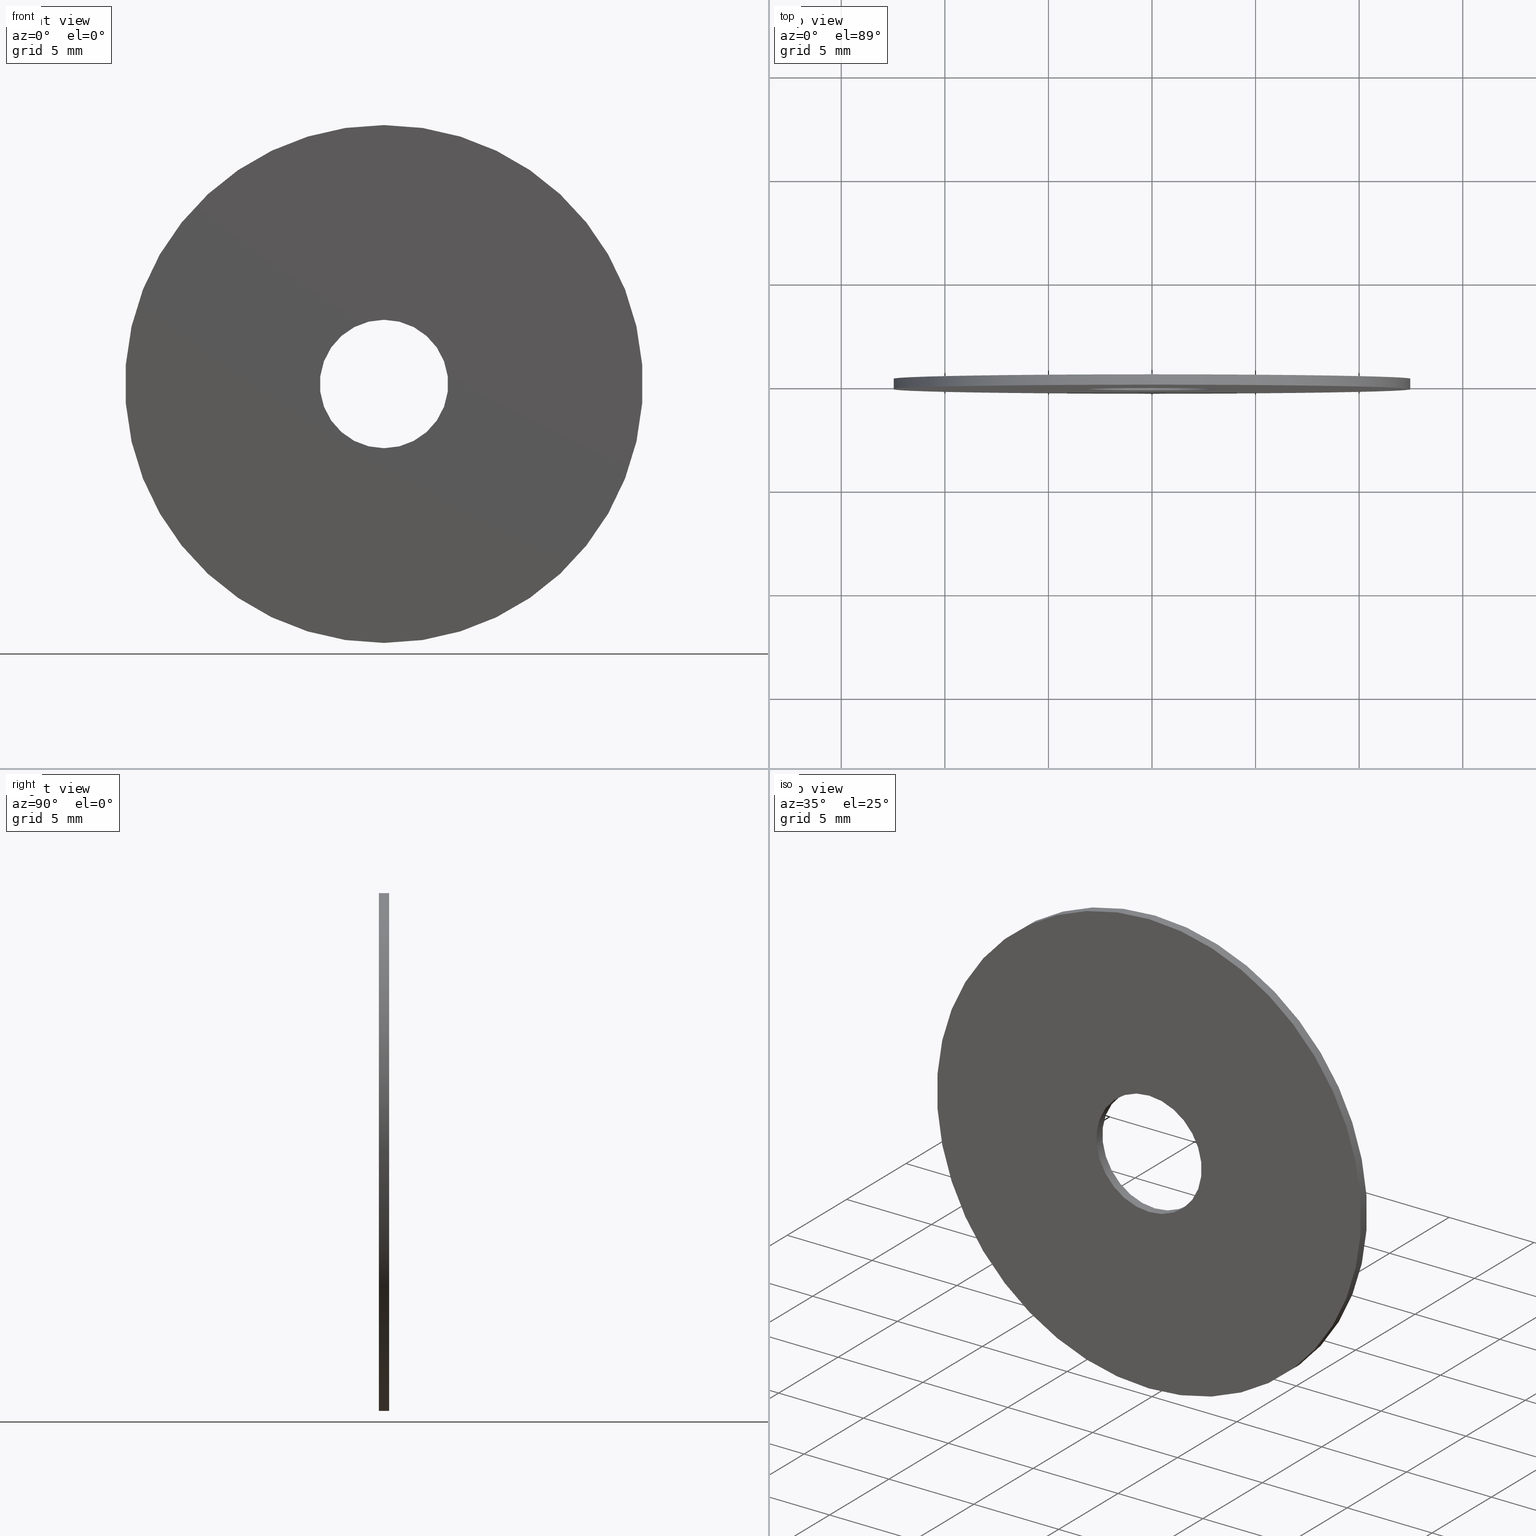
[diagram: canonical four-view strip — front | top / right | iso, engineering-drawing reading convention]
A machine part, canonical four-view strip (front | top / right | iso — engineering-drawing reading convention). The complete STEP part file that produces these views, byte-faithful:
ISO-10303-21;
HEADER;
FILE_DESCRIPTION (( 'STEP AP203' ),
    '1' );
FILE_NAME ('1.4.2.132-ZGH-25-DK0.5.STEP',
    '2024-04-06T05:15:09',
    ( '' ),
    ( '' ),
    'SwSTEP 2.0',
    'SolidWorks 2021',
    '' );
FILE_SCHEMA (( 'CONFIG_CONTROL_DESIGN' ));
ENDSEC;

DATA;
#1 = DIRECTION ( 'NONE',  ( 0.000000000000000000, 0.000000000000000000, 1.000000000000000000 ) ) ;
#2 = PRODUCT_DEFINITION_FORMATION_WITH_SPECIFIED_SOURCE ( '�κ�', '', #143, .NOT_KNOWN. ) ;
#3 = DIRECTION ( 'NONE',  ( 1.000000000000000000, 0.000000000000000000, 0.000000000000000000 ) ) ;
#4 = CARTESIAN_POINT ( 'NONE',  ( 0.000000000000000000, -0.2500000000000000000, 3.100000000000000089 ) ) ;
#5 = PERSON_AND_ORGANIZATION ( #83, #62 ) ;
#6 = CC_DESIGN_PERSON_AND_ORGANIZATION_ASSIGNMENT ( #5, #41, ( #2 ) ) ;
#7 = DATE_AND_TIME ( #183, #112 ) ;
#8 = PERSON_AND_ORGANIZATION_ROLE ( 'classification_officer' ) ;
#9 = CIRCLE ( 'NONE', #131, 3.100000000000000089 ) ;
#10 = AXIS2_PLACEMENT_3D ( 'NONE', #69, #51, #187 ) ;
#11 = ORIENTED_EDGE ( 'NONE', *, *, #13, .T. ) ;
#12 = CYLINDRICAL_SURFACE ( 'NONE', #205, 3.100000000000000089 ) ;
#13 = EDGE_CURVE ( 'NONE', #29, #85, #145, .T. ) ;
#14 = CARTESIAN_POINT ( 'NONE',  ( 1.530808498934191521E-15, 0.2500000000000000000, 12.50000000000000000 ) ) ;
#15 = ORIENTED_EDGE ( 'NONE', *, *, #180, .F. ) ;
#16 = ADVANCED_FACE ( 'NONE', ( #95 ), #47, .T. ) ;
#17 = EDGE_LOOP ( 'NONE', ( #11, #72 ) ) ;
#18 = ORIENTED_EDGE ( 'NONE', *, *, #158, .F. ) ;
#19 = MECHANICAL_CONTEXT ( 'NONE', #124, 'mechanical' ) ;
#20 = PRODUCT_DEFINITION ( 'δ֪', '', #2, #86 ) ;
#21 = AXIS2_PLACEMENT_3D ( 'NONE', #32, #105, #71 ) ;
#22 = LINE ( 'NONE', #178, #119 ) ;
#23 = EDGE_CURVE ( 'NONE', #211, #212, #34, .T. ) ;
#24 = AXIS2_PLACEMENT_3D ( 'NONE', #116, #133, #232 ) ;
#25 = PERSON_AND_ORGANIZATION ( #83, #62 ) ;
#26 = PERSON_AND_ORGANIZATION ( #83, #62 ) ;
#27 = ORIENTED_EDGE ( 'NONE', *, *, #110, .F. ) ;
#28 = EDGE_CURVE ( 'NONE', #212, #211, #150, .T. ) ;
#29 = VERTEX_POINT ( 'NONE', #171 ) ;
#30 = DIRECTION ( 'NONE',  ( 0.000000000000000000, 1.000000000000000000, 0.000000000000000000 ) ) ;
#31 = EDGE_LOOP ( 'NONE', ( #241, #225 ) ) ;
#32 = CARTESIAN_POINT ( 'NONE',  ( 0.000000000000000000, -0.2500000000000000000, 0.000000000000000000 ) ) ;
#33 = CARTESIAN_POINT ( 'NONE',  ( 0.000000000000000000, -0.2500000000000000000, 0.000000000000000000 ) ) ;
#34 = CIRCLE ( 'NONE', #157, 12.50000000000000000 ) ;
#35 = CARTESIAN_POINT ( 'NONE',  ( 0.000000000000000000, -0.2500000000000000000, 0.000000000000000000 ) ) ;
#36 = CYLINDRICAL_SURFACE ( 'NONE', #67, 3.100000000000000089 ) ;
#37 =( NAMED_UNIT ( * ) SI_UNIT ( $, .STERADIAN. ) SOLID_ANGLE_UNIT ( ) );
#38 = CIRCLE ( 'NONE', #92, 3.100000000000000089 ) ;
#39 = CARTESIAN_POINT ( 'NONE',  ( 0.000000000000000000, 0.2500000000000000000, 0.000000000000000000 ) ) ;
#40 = LINE ( 'NONE', #4, #235 ) ;
#41 = PERSON_AND_ORGANIZATION_ROLE ( 'creator' ) ;
#42 = COORDINATED_UNIVERSAL_TIME_OFFSET ( 8, 0, .AHEAD. ) ;
#43 = PERSON_AND_ORGANIZATION_ROLE ( 'creator' ) ;
#44 = AXIS2_PLACEMENT_3D ( 'NONE', #159, #54, #3 ) ;
#45 = ORIENTED_EDGE ( 'NONE', *, *, #186, .F. ) ;
#46 = CC_DESIGN_PERSON_AND_ORGANIZATION_ASSIGNMENT ( #60, #185, ( #2 ) ) ;
#47 = CYLINDRICAL_SURFACE ( 'NONE', #58, 12.50000000000000000 ) ;
#48 = DIRECTION ( 'NONE',  ( -0.000000000000000000, -1.000000000000000000, -0.000000000000000000 ) ) ;
#49 = DIRECTION ( 'NONE',  ( -0.000000000000000000, -1.000000000000000000, -0.000000000000000000 ) ) ;
#50 = ORIENTED_EDGE ( 'NONE', *, *, #57, .T. ) ;
#51 = DIRECTION ( 'NONE',  ( 0.000000000000000000, 1.000000000000000000, 0.000000000000000000 ) ) ;
#52 = AXIS2_PLACEMENT_3D ( 'NONE', #39, #132, #1 ) ;
#53 = CC_DESIGN_PERSON_AND_ORGANIZATION_ASSIGNMENT ( #120, #8, ( #229 ) ) ;
#54 = DIRECTION ( 'NONE',  ( 0.000000000000000000, 0.000000000000000000, 1.000000000000000000 ) ) ;
#55 = CARTESIAN_POINT ( 'NONE',  ( 0.000000000000000000, 0.2500000000000000000, 0.000000000000000000 ) ) ;
#56 = DIRECTION ( 'NONE',  ( 0.000000000000000000, 0.000000000000000000, -1.000000000000000000 ) ) ;
#57 = EDGE_CURVE ( 'NONE', #123, #165, #125, .T. ) ;
#58 = AXIS2_PLACEMENT_3D ( 'NONE', #109, #190, #129 ) ;
#59 = APPROVAL_ROLE ( '' ) ;
#60 = PERSON_AND_ORGANIZATION ( #83, #62 ) ;
#61 = ORIENTED_EDGE ( 'NONE', *, *, #147, .F. ) ;
#62 = ORGANIZATION ( 'δָ��', 'δָ��', '' ) ;
#63 = APPROVAL ( #81, 'δָ��' ) ;
#64 = ADVANCED_BREP_SHAPE_REPRESENTATION ( '1.4.2.132-ZGH-25-DK0.5', ( #117, #44 ), #122 ) ;
#65 = DATE_TIME_ROLE ( 'creation_date' ) ;
#66 = APPLICATION_CONTEXT ( 'configuration controlled 3d designs of mechanical parts and assemblies' ) ;
#67 = AXIS2_PLACEMENT_3D ( 'NONE', #35, #73, #77 ) ;
#68 = VERTEX_POINT ( 'NONE', #155 ) ;
#69 = CARTESIAN_POINT ( 'NONE',  ( 0.000000000000000000, 0.2500000000000000000, 0.000000000000000000 ) ) ;
#70 = CARTESIAN_POINT ( 'NONE',  ( 0.000000000000000000, 0.2500000000000000000, 0.000000000000000000 ) ) ;
#71 = DIRECTION ( 'NONE',  ( 0.000000000000000000, 0.000000000000000000, 1.000000000000000000 ) ) ;
#72 = ORIENTED_EDGE ( 'NONE', *, *, #126, .T. ) ;
#73 = DIRECTION ( 'NONE',  ( -0.000000000000000000, 1.000000000000000000, -0.000000000000000000 ) ) ;
#74 =( LENGTH_UNIT ( ) NAMED_UNIT ( * ) SI_UNIT ( .MILLI., .METRE. ) );
#75 = APPLICATION_PROTOCOL_DEFINITION ( 'international standard', 'config_control_design', 1994, #124 ) ;
#76 = PERSON_AND_ORGANIZATION_ROLE ( 'design_owner' ) ;
#77 = DIRECTION ( 'NONE',  ( 0.000000000000000000, 0.000000000000000000, 1.000000000000000000 ) ) ;
#78 = APPROVAL_PERSON_ORGANIZATION ( #219, #238, #182 ) ;
#79 = CALENDAR_DATE ( 2024, 6, 4 ) ;
#80 = APPROVAL_DATE_TIME ( #7, #63 ) ;
#81 = APPROVAL_STATUS ( 'not_yet_approved' ) ;
#82 = ORIENTED_EDGE ( 'NONE', *, *, #110, .T. ) ;
#83 = PERSON ( 'δָ��', 'δָ��', 'δָ��', ('δָ��'), ('δָ��'), ('δָ��') ) ;
#84 = ADVANCED_FACE ( 'NONE', ( #213 ), #12, .F. ) ;
#85 = VERTEX_POINT ( 'NONE', #14 ) ;
#86 = DESIGN_CONTEXT ( 'detailed design', #66, 'design' ) ;
#87 = ORIENTED_EDGE ( 'NONE', *, *, #126, .F. ) ;
#88 = VECTOR ( 'NONE', #48, 1000.000000000000000 ) ;
#89 = DIRECTION ( 'NONE',  ( 0.000000000000000000, 1.000000000000000000, 0.000000000000000000 ) ) ;
#90 = FACE_OUTER_BOUND ( 'NONE', #108, .T. ) ;
#91 = VERTEX_POINT ( 'NONE', #111 ) ;
#92 = AXIS2_PLACEMENT_3D ( 'NONE', #55, #181, #156 ) ;
#93 = DIRECTION ( 'NONE',  ( -0.000000000000000000, 1.000000000000000000, -0.000000000000000000 ) ) ;
#94 = ADVANCED_FACE ( 'NONE', ( #226, #173 ), #249, .F. ) ;
#95 = FACE_OUTER_BOUND ( 'NONE', #149, .T. ) ;
#96 = DIRECTION ( 'NONE',  ( -0.000000000000000000, 1.000000000000000000, -0.000000000000000000 ) ) ;
#97 = LOCAL_TIME ( 13, 15, 9.000000000000000000, #144 ) ;
#98 = CARTESIAN_POINT ( 'NONE',  ( 3.796405077356794918E-16, 0.2500000000000000000, -3.100000000000000089 ) ) ;
#99 = APPROVAL_STATUS ( 'not_yet_approved' ) ;
#100 = APPROVAL_DATE_TIME ( #161, #202 ) ;
#101 = AXIS2_PLACEMENT_3D ( 'NONE', #246, #89, #231 ) ;
#102 = DATE_AND_TIME ( #79, #106 ) ;
#103 = COORDINATED_UNIVERSAL_TIME_OFFSET ( 8, 0, .AHEAD. ) ;
#104 = SHAPE_DEFINITION_REPRESENTATION ( #176, #64 ) ;
#105 = DIRECTION ( 'NONE',  ( 0.000000000000000000, 1.000000000000000000, 0.000000000000000000 ) ) ;
#106 = LOCAL_TIME ( 13, 15, 9.000000000000000000, #103 ) ;
#107 = DIRECTION ( 'NONE',  ( 0.000000000000000000, 0.000000000000000000, 1.000000000000000000 ) ) ;
#108 = EDGE_LOOP ( 'NONE', ( #45, #209, #82, #128 ) ) ;
#109 = CARTESIAN_POINT ( 'NONE',  ( 0.000000000000000000, 0.2500000000000000000, 0.000000000000000000 ) ) ;
#110 = EDGE_CURVE ( 'NONE', #29, #211, #130, .T. ) ;
#111 = CARTESIAN_POINT ( 'NONE',  ( 0.000000000000000000, 0.2500000000000000000, 3.100000000000000089 ) ) ;
#112 = LOCAL_TIME ( 13, 15, 9.000000000000000000, #118 ) ;
#113 = CARTESIAN_POINT ( 'NONE',  ( 0.000000000000000000, -0.2500000000000000000, 0.000000000000000000 ) ) ;
#114 = DIRECTION ( 'NONE',  ( 0.000000000000000000, 1.000000000000000000, 0.000000000000000000 ) ) ;
#115 = FACE_BOUND ( 'NONE', #172, .T. ) ;
#116 = CARTESIAN_POINT ( 'NONE',  ( 0.000000000000000000, 0.2500000000000000000, 0.000000000000000000 ) ) ;
#117 = MANIFOLD_SOLID_BREP ( '�г�-����3', #233 ) ;
#118 = COORDINATED_UNIVERSAL_TIME_OFFSET ( 8, 0, .AHEAD. ) ;
#119 = VECTOR ( 'NONE', #236, 1000.000000000000000 ) ;
#120 = PERSON_AND_ORGANIZATION ( #83, #62 ) ;
#121 = EDGE_LOOP ( 'NONE', ( #239, #162 ) ) ;
#122 =( GEOMETRIC_REPRESENTATION_CONTEXT ( 3 ) GLOBAL_UNCERTAINTY_ASSIGNED_CONTEXT ( ( #166 ) ) GLOBAL_UNIT_ASSIGNED_CONTEXT ( ( #74, #198, #37 ) ) REPRESENTATION_CONTEXT ( 'NONE', 'WORKASPACE' ) );
#123 = VERTEX_POINT ( 'NONE', #127 ) ;
#124 = APPLICATION_CONTEXT ( 'configuration controlled 3d designs of mechanical parts and assemblies' ) ;
#125 = LINE ( 'NONE', #148, #141 ) ;
#126 = EDGE_CURVE ( 'NONE', #85, #29, #151, .T. ) ;
#127 = CARTESIAN_POINT ( 'NONE',  ( 3.796405077356794918E-16, -0.2500000000000000000, -3.100000000000000089 ) ) ;
#128 = ORIENTED_EDGE ( 'NONE', *, *, #23, .T. ) ;
#129 = DIRECTION ( 'NONE',  ( 0.000000000000000000, 0.000000000000000000, -1.000000000000000000 ) ) ;
#130 = LINE ( 'NONE', #170, #88 ) ;
#131 = AXIS2_PLACEMENT_3D ( 'NONE', #113, #114, #136 ) ;
#132 = DIRECTION ( 'NONE',  ( 0.000000000000000000, 1.000000000000000000, 0.000000000000000000 ) ) ;
#133 = DIRECTION ( 'NONE',  ( 0.000000000000000000, 1.000000000000000000, 0.000000000000000000 ) ) ;
#134 = CARTESIAN_POINT ( 'NONE',  ( 0.000000000000000000, -0.2500000000000000000, 0.000000000000000000 ) ) ;
#135 = CARTESIAN_POINT ( 'NONE',  ( 0.000000000000000000, -0.2500000000000000000, -12.50000000000000000 ) ) ;
#136 = DIRECTION ( 'NONE',  ( 0.000000000000000000, 0.000000000000000000, 1.000000000000000000 ) ) ;
#137 = ADVANCED_FACE ( 'NONE', ( #90 ), #189, .T. ) ;
#138 = CALENDAR_DATE ( 2024, 6, 4 ) ;
#139 = ORIENTED_EDGE ( 'NONE', *, *, #168, .T. ) ;
#140 = COORDINATED_UNIVERSAL_TIME_OFFSET ( 8, 0, .AHEAD. ) ;
#141 = VECTOR ( 'NONE', #230, 1000.000000000000000 ) ;
#142 = CALENDAR_DATE ( 2024, 6, 4 ) ;
#143 = PRODUCT ( '1.4.2.132-ZGH-25-DK0.5', '1.4.2.132-ZGH-25-DK0.5', '', ( #19 ) ) ;
#144 = COORDINATED_UNIVERSAL_TIME_OFFSET ( 8, 0, .AHEAD. ) ;
#145 = CIRCLE ( 'NONE', #10, 12.50000000000000000 ) ;
#146 = DIRECTION ( 'NONE',  ( 0.000000000000000000, 0.000000000000000000, 1.000000000000000000 ) ) ;
#147 = EDGE_CURVE ( 'NONE', #123, #68, #169, .T. ) ;
#148 = CARTESIAN_POINT ( 'NONE',  ( 3.796405077356794918E-16, -0.2500000000000000000, -3.100000000000000089 ) ) ;
#149 = EDGE_LOOP ( 'NONE', ( #87, #244, #222, #27 ) ) ;
#150 = CIRCLE ( 'NONE', #21, 12.50000000000000000 ) ;
#151 = CIRCLE ( 'NONE', #243, 12.50000000000000000 ) ;
#152 = CC_DESIGN_SECURITY_CLASSIFICATION ( #229, ( #2 ) ) ;
#153 = CC_DESIGN_PERSON_AND_ORGANIZATION_ASSIGNMENT ( #26, #43, ( #20 ) ) ;
#154 = ORIENTED_EDGE ( 'NONE', *, *, #158, .T. ) ;
#155 = CARTESIAN_POINT ( 'NONE',  ( 0.000000000000000000, -0.2500000000000000000, 3.100000000000000089 ) ) ;
#156 = DIRECTION ( 'NONE',  ( 0.000000000000000000, 0.000000000000000000, 1.000000000000000000 ) ) ;
#157 = AXIS2_PLACEMENT_3D ( 'NONE', #33, #247, #146 ) ;
#158 = EDGE_CURVE ( 'NONE', #91, #165, #38, .T. ) ;
#159 = CARTESIAN_POINT ( 'NONE',  ( 0.000000000000000000, 0.000000000000000000, 0.000000000000000000 ) ) ;
#160 = PERSON_AND_ORGANIZATION ( #83, #62 ) ;
#161 = DATE_AND_TIME ( #138, #221 ) ;
#162 = ORIENTED_EDGE ( 'NONE', *, *, #28, .F. ) ;
#163 = AXIS2_PLACEMENT_3D ( 'NONE', #134, #216, #215 ) ;
#164 = APPROVAL_ROLE ( '' ) ;
#165 = VERTEX_POINT ( 'NONE', #98 ) ;
#166 = UNCERTAINTY_MEASURE_WITH_UNIT (LENGTH_MEASURE( 1.000000000000000082E-05 ), #74, 'distance_accuracy_value', 'NONE');
#167 = EDGE_LOOP ( 'NONE', ( #61, #50, #139, #15 ) ) ;
#168 = EDGE_CURVE ( 'NONE', #165, #91, #195, .T. ) ;
#169 = CIRCLE ( 'NONE', #163, 3.100000000000000089 ) ;
#170 = CARTESIAN_POINT ( 'NONE',  ( 0.000000000000000000, 0.2500000000000000000, -12.50000000000000000 ) ) ;
#171 = CARTESIAN_POINT ( 'NONE',  ( 0.000000000000000000, 0.2500000000000000000, -12.50000000000000000 ) ) ;
#172 = EDGE_LOOP ( 'NONE', ( #18, #191 ) ) ;
#173 = FACE_OUTER_BOUND ( 'NONE', #121, .T. ) ;
#174 = FACE_OUTER_BOUND ( 'NONE', #224, .T. ) ;
#175 = CARTESIAN_POINT ( 'NONE',  ( 1.530808498934191521E-15, -0.2500000000000000000, 12.50000000000000000 ) ) ;
#176 = PRODUCT_DEFINITION_SHAPE ( 'NONE', 'NONE',  #20 ) ;
#177 = AXIS2_PLACEMENT_3D ( 'NONE', #228, #49, #56 ) ;
#178 = CARTESIAN_POINT ( 'NONE',  ( 1.530808498934191521E-15, 0.2500000000000000000, 12.50000000000000000 ) ) ;
#179 = PLANE ( 'NONE',  #24 ) ;
#180 = EDGE_CURVE ( 'NONE', #68, #91, #40, .T. ) ;
#181 = DIRECTION ( 'NONE',  ( 0.000000000000000000, 1.000000000000000000, 0.000000000000000000 ) ) ;
#182 = APPROVAL_ROLE ( '' ) ;
#183 = CALENDAR_DATE ( 2024, 6, 4 ) ;
#184 = SECURITY_CLASSIFICATION_LEVEL ( 'unclassified' ) ;
#185 = PERSON_AND_ORGANIZATION_ROLE ( 'design_supplier' ) ;
#186 = EDGE_CURVE ( 'NONE', #85, #212, #22, .T. ) ;
#187 = DIRECTION ( 'NONE',  ( 0.000000000000000000, 0.000000000000000000, 1.000000000000000000 ) ) ;
#188 = APPROVAL_PERSON_ORGANIZATION ( #25, #63, #164 ) ;
#189 = CYLINDRICAL_SURFACE ( 'NONE', #177, 12.50000000000000000 ) ;
#190 = DIRECTION ( 'NONE',  ( -0.000000000000000000, -1.000000000000000000, -0.000000000000000000 ) ) ;
#191 = ORIENTED_EDGE ( 'NONE', *, *, #168, .F. ) ;
#192 = CC_DESIGN_APPROVAL ( #202, ( #20 ) ) ;
#193 = DIRECTION ( 'NONE',  ( 0.000000000000000000, 0.000000000000000000, 1.000000000000000000 ) ) ;
#194 = ADVANCED_FACE ( 'NONE', ( #174 ), #36, .F. ) ;
#195 = CIRCLE ( 'NONE', #52, 3.100000000000000089 ) ;
#196 = PERSON_AND_ORGANIZATION ( #83, #62 ) ;
#197 = APPLICATION_PROTOCOL_DEFINITION ( 'international standard', 'config_control_design', 1994, #66 ) ;
#198 =( NAMED_UNIT ( * ) PLANE_ANGLE_UNIT ( ) SI_UNIT ( $, .RADIAN. ) );
#199 = DATE_AND_TIME ( #240, #200 ) ;
#200 = LOCAL_TIME ( 13, 15, 9.000000000000000000, #42 ) ;
#201 = APPROVAL_DATE_TIME ( #204, #238 ) ;
#202 = APPROVAL ( #99, 'δָ��' ) ;
#203 = ORIENTED_EDGE ( 'NONE', *, *, #57, .F. ) ;
#204 = DATE_AND_TIME ( #142, #97 ) ;
#205 = AXIS2_PLACEMENT_3D ( 'NONE', #208, #93, #193 ) ;
#206 = DATE_TIME_ROLE ( 'classification_date' ) ;
#207 = ORIENTED_EDGE ( 'NONE', *, *, #180, .T. ) ;
#208 = CARTESIAN_POINT ( 'NONE',  ( 0.000000000000000000, -0.2500000000000000000, 0.000000000000000000 ) ) ;
#209 = ORIENTED_EDGE ( 'NONE', *, *, #13, .F. ) ;
#210 = APPROVAL_PERSON_ORGANIZATION ( #160, #202, #59 ) ;
#211 = VERTEX_POINT ( 'NONE', #135 ) ;
#212 = VERTEX_POINT ( 'NONE', #175 ) ;
#213 = FACE_OUTER_BOUND ( 'NONE', #167, .T. ) ;
#214 = CC_DESIGN_DATE_AND_TIME_ASSIGNMENT ( #199, #206, ( #229 ) ) ;
#215 = DIRECTION ( 'NONE',  ( 0.000000000000000000, 0.000000000000000000, 1.000000000000000000 ) ) ;
#216 = DIRECTION ( 'NONE',  ( 0.000000000000000000, 1.000000000000000000, 0.000000000000000000 ) ) ;
#217 = CC_DESIGN_APPROVAL ( #238, ( #2 ) ) ;
#218 = CC_DESIGN_APPROVAL ( #63, ( #229 ) ) ;
#219 = PERSON_AND_ORGANIZATION ( #83, #62 ) ;
#220 = CC_DESIGN_DATE_AND_TIME_ASSIGNMENT ( #102, #65, ( #20 ) ) ;
#221 = LOCAL_TIME ( 13, 15, 9.000000000000000000, #140 ) ;
#222 = ORIENTED_EDGE ( 'NONE', *, *, #28, .T. ) ;
#223 = EDGE_CURVE ( 'NONE', #68, #123, #9, .T. ) ;
#224 = EDGE_LOOP ( 'NONE', ( #203, #242, #207, #154 ) ) ;
#225 = ORIENTED_EDGE ( 'NONE', *, *, #147, .T. ) ;
#226 = FACE_BOUND ( 'NONE', #31, .T. ) ;
#227 = PRODUCT_RELATED_PRODUCT_CATEGORY ( 'detail', '', ( #143 ) ) ;
#228 = CARTESIAN_POINT ( 'NONE',  ( 0.000000000000000000, 0.2500000000000000000, 0.000000000000000000 ) ) ;
#229 = SECURITY_CLASSIFICATION ( '', '', #184 ) ;
#230 = DIRECTION ( 'NONE',  ( -0.000000000000000000, 1.000000000000000000, -0.000000000000000000 ) ) ;
#231 = DIRECTION ( 'NONE',  ( 0.000000000000000000, -0.000000000000000000, 1.000000000000000000 ) ) ;
#232 = DIRECTION ( 'NONE',  ( 0.000000000000000000, -0.000000000000000000, 1.000000000000000000 ) ) ;
#233 = CLOSED_SHELL ( 'NONE', ( #84, #16, #137, #245, #94, #194 ) ) ;
#234 = FACE_OUTER_BOUND ( 'NONE', #17, .T. ) ;
#235 = VECTOR ( 'NONE', #96, 1000.000000000000000 ) ;
#236 = DIRECTION ( 'NONE',  ( -0.000000000000000000, -1.000000000000000000, -0.000000000000000000 ) ) ;
#237 = APPROVAL_STATUS ( 'not_yet_approved' ) ;
#238 = APPROVAL ( #237, 'δָ��' ) ;
#239 = ORIENTED_EDGE ( 'NONE', *, *, #23, .F. ) ;
#240 = CALENDAR_DATE ( 2024, 6, 4 ) ;
#241 = ORIENTED_EDGE ( 'NONE', *, *, #223, .T. ) ;
#242 = ORIENTED_EDGE ( 'NONE', *, *, #223, .F. ) ;
#243 = AXIS2_PLACEMENT_3D ( 'NONE', #70, #30, #107 ) ;
#244 = ORIENTED_EDGE ( 'NONE', *, *, #186, .T. ) ;
#245 = ADVANCED_FACE ( 'NONE', ( #115, #234 ), #179, .T. ) ;
#246 = CARTESIAN_POINT ( 'NONE',  ( 0.000000000000000000, -0.2500000000000000000, 0.000000000000000000 ) ) ;
#247 = DIRECTION ( 'NONE',  ( 0.000000000000000000, 1.000000000000000000, 0.000000000000000000 ) ) ;
#248 = CC_DESIGN_PERSON_AND_ORGANIZATION_ASSIGNMENT ( #196, #76, ( #143 ) ) ;
#249 = PLANE ( 'NONE',  #101 ) ;
ENDSEC;
END-ISO-10303-21;
